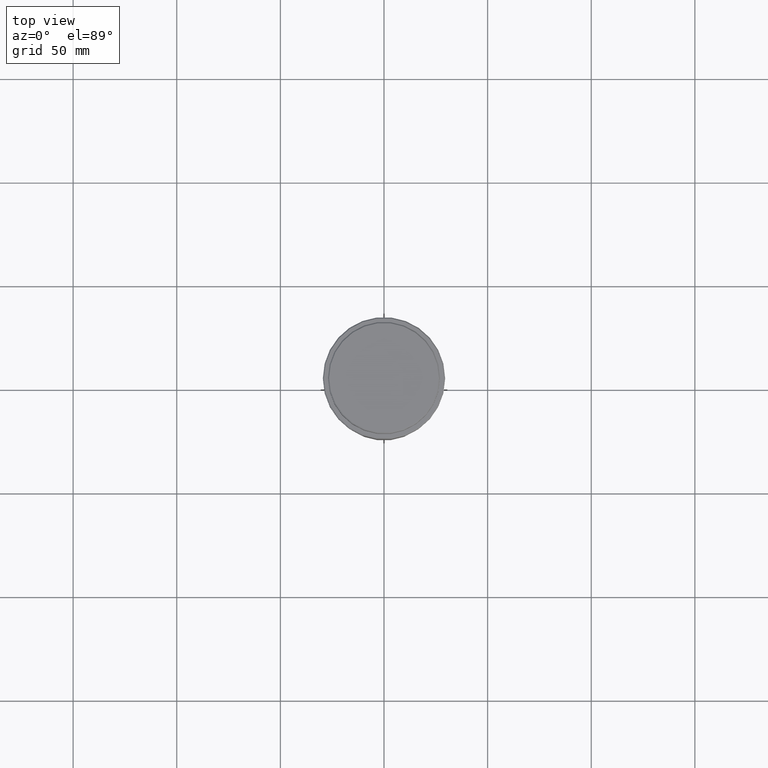
[diagram: clean part render]
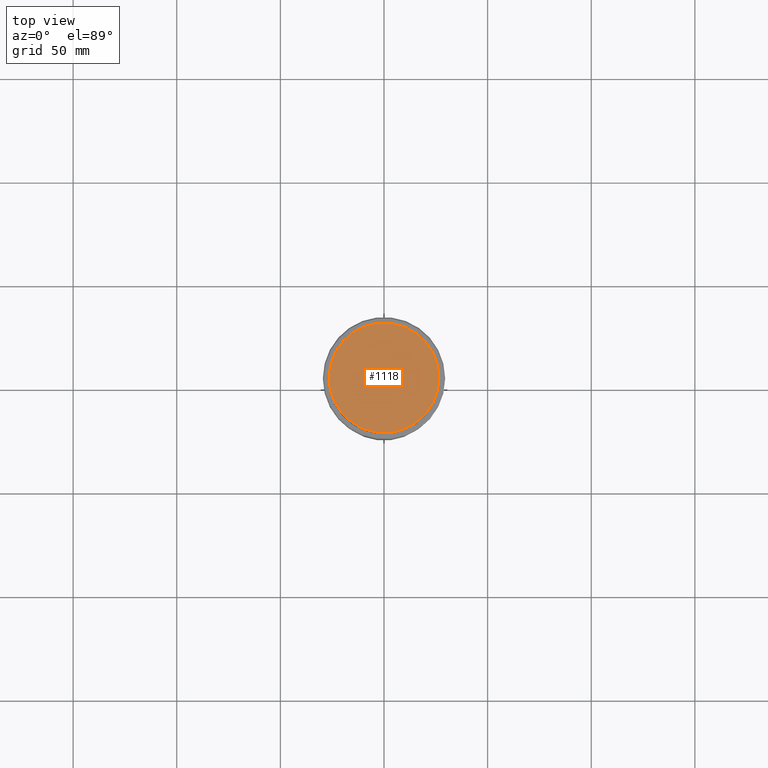
[diagram: same view with one face highlighted and labeled with its STEP entity id]
A machine part, top view. The second image highlights one B-rep face of the part: STEP entity #1118.
In plain terms, the highlighted planar face has unit normal (0, -0, 1).
Its self-contained STEP definition (entity closure, byte-faithful):
#60 = ORIENTED_EDGE ( 'NONE', *, *, #323, .T. ) ;
#77 = AXIS2_PLACEMENT_3D ( 'NONE', #602, #1347, #1133 ) ;
#81 = DIRECTION ( 'NONE',  ( -0.000000000000000000, -0.000000000000000000, 1.000000000000000000 ) ) ;
#277 = VERTEX_POINT ( 'NONE', #1159 ) ;
#323 = EDGE_CURVE ( 'NONE', #815, #277, #953, .T. ) ;
#484 = DIRECTION ( 'NONE',  ( -0.000000000000000000, -0.000000000000000000, 1.000000000000000000 ) ) ;
#514 = CARTESIAN_POINT ( 'NONE',  ( 0.000000000000000000, 0.000000000000000000, 0.000000000000000000 ) ) ;
#602 = CARTESIAN_POINT ( 'NONE',  ( 0.000000000000000000, 0.000000000000000000, 0.000000000000000000 ) ) ;
#604 = DIRECTION ( 'NONE',  ( 1.000000000000000000, 0.000000000000000000, 0.000000000000000000 ) ) ;
#611 = AXIS2_PLACEMENT_3D ( 'NONE', #924, #484, #604 ) ;
#671 = EDGE_CURVE ( 'NONE', #277, #815, #703, .T. ) ;
#703 = CIRCLE ( 'NONE', #611, 26.50000000000007816 ) ;
#760 = CARTESIAN_POINT ( 'NONE',  ( -26.50000000000007816, 0.000000000000000000, 0.000000000000000000 ) ) ;
#815 = VERTEX_POINT ( 'NONE', #760 ) ;
#817 = PLANE ( 'NONE',  #77 ) ;
#924 = CARTESIAN_POINT ( 'NONE',  ( 0.000000000000000000, 0.000000000000000000, 0.000000000000000000 ) ) ;
#953 = CIRCLE ( 'NONE', #1246, 26.50000000000007816 ) ;
#1019 = FACE_OUTER_BOUND ( 'NONE', #1269, .T. ) ;
#1112 = ORIENTED_EDGE ( 'NONE', *, *, #671, .T. ) ;
#1118 = ADVANCED_FACE ( 'NONE', ( #1019 ), #817, .T. ) ;
#1133 = DIRECTION ( 'NONE',  ( 1.000000000000000000, 0.000000000000000000, 0.000000000000000000 ) ) ;
#1159 = CARTESIAN_POINT ( 'NONE',  ( 26.50000000000007816, 3.275930187719175074E-15, 0.000000000000000000 ) ) ;
#1246 = AXIS2_PLACEMENT_3D ( 'NONE', #514, #81, #1389 ) ;
#1269 = EDGE_LOOP ( 'NONE', ( #60, #1112 ) ) ;
#1347 = DIRECTION ( 'NONE',  ( 0.000000000000000000, -0.000000000000000000, 1.000000000000000000 ) ) ;
#1389 = DIRECTION ( 'NONE',  ( 1.000000000000000000, 0.000000000000000000, 0.000000000000000000 ) ) ;